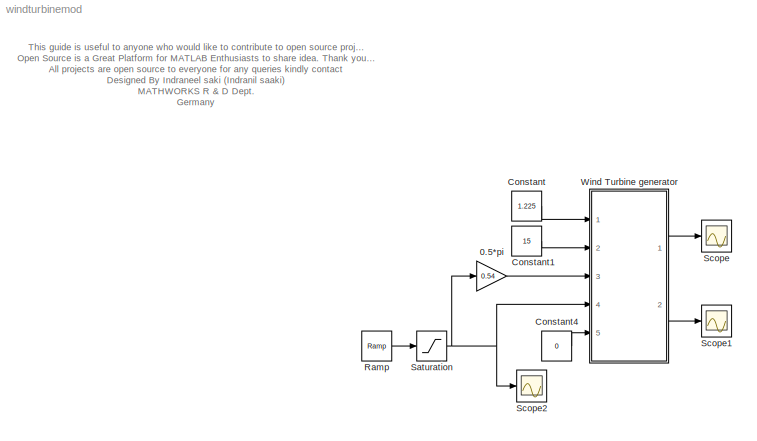
MODEL windturbinemod
KIND model
BLOCK [Gain] 0.5*pi
  Gain = 0.54
  OutDataTypeStr = Inherit: Inherit via internal rule
  ParamDataTypeStr = Inherit: Inherit via internal rule
  SID = 1
  SaturateOnIntegerOverflow = off
BLOCK [Constant] Constant
  SID = 2
  Value = 1.225
BLOCK [Constant] Constant1
  SID = 3
  Value = 15
BLOCK [Constant] Constant4
  SID = 4
  Value = 0
BLOCK [Reference] Ramp  REF=simulink/Sources/Ramp
  FunctionWithSeparateData = off
  Ports = [0, 1]
  RTWMemSecDataConstants = Inherit from model
  RTWMemSecDataInternal = Inherit from model
  RTWMemSecDataParameters = Inherit from model
  RTWMemSecFuncExecute = Inherit from model
  RTWMemSecFuncInitTerm = Inherit from model
  SID = 5
  ShowPortLabels = FromPortIcon
  SourceBlock = simulink/Sources/Ramp
  SourceProductBaseCode = SL
  SourceProductName = Simulink
  SourceType = Ramp
  SystemSampleTime = -1
  VectorParams1D = on
  X0 = 0
  slope = 1
  start = 0
BLOCK [Saturate] Saturation
  InputPortMap = u0
  LowerLimit = 3
  Ports = [1, 1]
  SID = 6
  UpperLimit = 100
BLOCK [Scope] Scope
  Floating = off
  NumInputPorts = 1
  Ports = [1]
  SID = 7
  ScopeSpecificationString = C++SS(StrPVP('Location','[6, 56, 1022, 740]'),StrPVP('Open','off'),MxPVP('AxesTitles',54,'struct(''axes1'',''%<SignalLabel>'')'),StrPVP('TimeRange','50'),StrPVP('YMin','5.19127e-026'),StrPVP('YMax','1.71991e+308'),StrPVP('DataFormat','StructureWithTime'),StrPVP('LimitDataPoints','off'),StrPVP('BlockParamSampleTime','0'),StrPVP('Decimation','1'),StrPVP('BlockParamSampleInput','off'))
BLOCK [Scope] Scope1
  Floating = off
  NumInputPorts = 1
  Ports = [1]
  SID = 8
  ScopeSpecificationString = C++SS(StrPVP('Location','[6, 56, 1022, 740]'),StrPVP('Open','off'),StrPVP('ZoomMode','xonly'),MxPVP('AxesTitles',54,'struct(''axes1'',''%<SignalLabel>'')'),StrPVP('SaveName','ScopeData1'),StrPVP('DataFormat','StructureWithTime'),StrPVP('LimitDataPoints','off'),StrPVP('BlockParamSampleTime','0'),StrPVP('Decimation','1'),StrPVP('BlockParamSampleInput','off'))
BLOCK [Scope] Scope2
  Floating = off
  NumInputPorts = 1
  Ports = [1]
  SID = 9
  ScopeSpecificationString = C++SS(StrPVP('Location','[188, 390, 512, 629]'),StrPVP('Open','off'),StrPVP('ZoomMode','yonly'),MxPVP('AxesTitles',54,'struct(''axes1'',''%<SignalLabel>'')'),StrPVP('SaveName','ScopeData4'),StrPVP('DataFormat','StructureWithTime'),StrPVP('BlockParamSampleTime','0'),StrPVP('LimitDataPoints','on'),StrPVP('Decimation','1'),StrPVP('BlockParamSampleInput','off'))
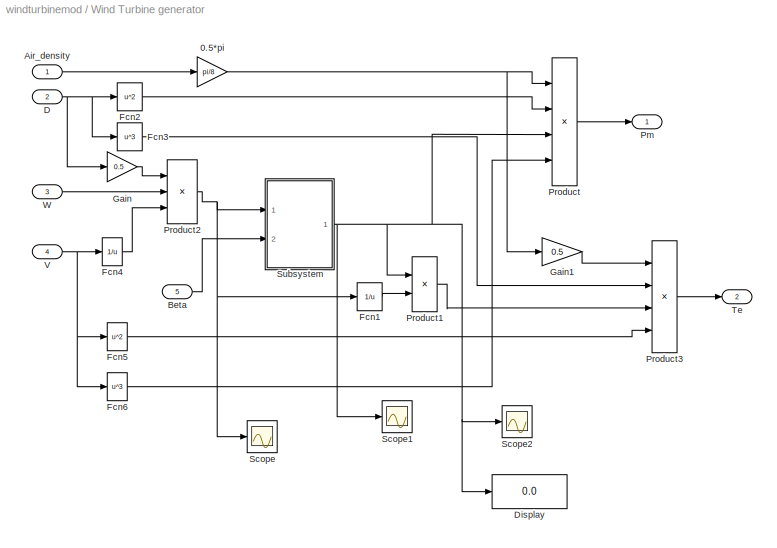
BLOCK [SubSystem] Wind Turbine generator
  Ports = [5, 2]
  RequestExecContextInheritance = off
  SID = 10
BLOCK [Gain] Wind Turbine generator/0.5*pi
  Gain = pi/8
  OutDataTypeStr = Inherit: Inherit via internal rule
  ParamDataTypeStr = Inherit: Inherit via internal rule
  SID = 16
  SaturateOnIntegerOverflow = off
BLOCK [Inport] Wind Turbine generator/Air_density
  IconDisplay = Port number
  SID = 11
BLOCK [Inport] Wind Turbine generator/Beta
  IconDisplay = Port number
  Port = 5
  SID = 15
BLOCK [Inport] Wind Turbine generator/D
  IconDisplay = Port number
  Port = 2
  SID = 12
BLOCK [Display] Wind Turbine generator/Display
  Decimation = 1
  Ports = [1]
  SID = 17
BLOCK [Fcn] Wind Turbine generator/Fcn1
  Expr = 1/u
  SID = 18
BLOCK [Fcn] Wind Turbine generator/Fcn2
  Expr = u^2
  SID = 19
BLOCK [Fcn] Wind Turbine generator/Fcn3
  Expr = u^3
  SID = 20
BLOCK [Fcn] Wind Turbine generator/Fcn4
  Expr = 1/u
  SID = 21
BLOCK [Fcn] Wind Turbine generator/Fcn5
  Expr = u^2
  SID = 22
BLOCK [Fcn] Wind Turbine generator/Fcn6
  Expr = u^3
  SID = 23
BLOCK [Gain] Wind Turbine generator/Gain
  Gain = 0.5
  OutDataTypeStr = Inherit: Inherit via internal rule
  ParamDataTypeStr = Inherit: Inherit via internal rule
  SID = 24
  SaturateOnIntegerOverflow = off
BLOCK [Gain] Wind Turbine generator/Gain1
  Gain = 0.5
  OutDataTypeStr = Inherit: Inherit via internal rule
  ParamDataTypeStr = Inherit: Inherit via internal rule
  SID = 25
  SaturateOnIntegerOverflow = off
BLOCK [Outport] Wind Turbine generator/Pm
  IconDisplay = Port number
  SID = 41
BLOCK [Product] Wind Turbine generator/Product
  InputSameDT = off
  Inputs = 4
  OutDataTypeStr = Inherit: Inherit via internal rule
  Ports = [4, 1]
  SID = 26
  SaturateOnIntegerOverflow = off
BLOCK [Product] Wind Turbine generator/Product1
  InputSameDT = off
  OutDataTypeStr = Inherit: Inherit via internal rule
  Ports = [2, 1]
  SID = 27
  SaturateOnIntegerOverflow = off
BLOCK [Product] Wind Turbine generator/Product2
  InputSameDT = off
  Inputs = 3
  OutDataTypeStr = Inherit: Inherit via internal rule
  Ports = [3, 1]
  SID = 28
  SaturateOnIntegerOverflow = off
BLOCK [Product] Wind Turbine generator/Product3
  InputSameDT = off
  Inputs = 4
  OutDataTypeStr = Inherit: Inherit via internal rule
  Ports = [4, 1]
  SID = 29
  SaturateOnIntegerOverflow = off
BLOCK [Scope] Wind Turbine generator/Scope
  Floating = off
  NumInputPorts = 1
  Ports = [1]
  SID = 30
  ScopeSpecificationString = C++SS(StrPVP('Location','[188, 390, 512, 629]'),StrPVP('Open','off'),StrPVP('ZoomMode','xonly'),MxPVP('AxesTitles',54,'struct(''axes1'',''%<SignalLabel>'')'),StrPVP('SaveName','ScopeData2'),StrPVP('DataFormat','StructureWithTime'),StrPVP('LimitDataPoints','off'),StrPVP('BlockParamSampleTime','0'),StrPVP('Decimation','1'),StrPVP('BlockParamSampleInput','off'))
BLOCK [Scope] Wind Turbine generator/Scope1
  Floating = off
  NumInputPorts = 1
  Ports = [1]
  SID = 31
  ScopeSpecificationString = C++SS(StrPVP('Location','[1, 45, 1017, 729]'),StrPVP('Open','off'),StrPVP('ZoomMode','yonly'),MxPVP('AxesTitles',54,'struct(''axes1'',''%<SignalLabel>'')'),StrPVP('SaveName','ScopeData3'),StrPVP('DataFormat','StructureWithTime'),StrPVP('LimitDataPoints','off'),StrPVP('BlockParamSampleTime','0'),StrPVP('Decimation','1'),StrPVP('BlockParamSampleInput','off'))
BLOCK [Scope] Wind Turbine generator/Scope2
  Floating = off
  NumInputPorts = 1
  Ports = [1]
  SID = 32
  ScopeSpecificationString = C++SS(StrPVP('Location','[188, 390, 512, 629]'),StrPVP('Open','off'),StrPVP('ZoomMode','yonly'),MxPVP('AxesTitles',54,'struct(''axes1'',''%<SignalLabel>'')'),StrPVP('SaveName','ScopeData5'),StrPVP('DataFormat','StructureWithTime'),StrPVP('LimitDataPoints','off'),StrPVP('BlockParamSampleTime','0'),StrPVP('Decimation','1'),StrPVP('BlockParamSampleInput','off'))
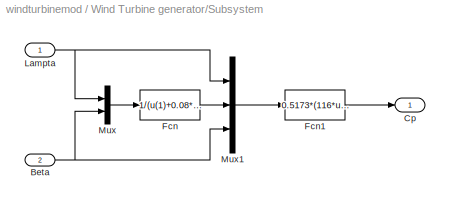
BLOCK [SubSystem] Wind Turbine generator/Subsystem
  Ports = [2, 1]
  RequestExecContextInheritance = off
  SID = 33
BLOCK [Inport] Wind Turbine generator/Subsystem/Beta
  IconDisplay = Port number
  Port = 2
  SID = 35
BLOCK [Outport] Wind Turbine generator/Subsystem/Cp
  IconDisplay = Port number
  SID = 40
BLOCK [Fcn] Wind Turbine generator/Subsystem/Fcn
  Expr = 1/(u(1)+0.08*u(2))-0.035/(u(2)^3+1)
  SID = 36
BLOCK [Fcn] Wind Turbine generator/Subsystem/Fcn1
  Expr = 0.5173*(116*u(2)-0.4*u(3)-5)*exp(-21*u(2))+0.0068*u(1)
  SID = 37
BLOCK [Inport] Wind Turbine generator/Subsystem/Lampta
  IconDisplay = Port number
  SID = 34
BLOCK [Mux] Wind Turbine generator/Subsystem/Mux
  DisplayOption = bar
  Inputs = 2
  Ports = [2, 1]
  SID = 38
BLOCK [Mux] Wind Turbine generator/Subsystem/Mux1
  DisplayOption = bar
  Inputs = 3
  Ports = [3, 1]
  SID = 39
BLOCK [Outport] Wind Turbine generator/Te
  IconDisplay = Port number
  Port = 2
  SID = 42
BLOCK [Inport] Wind Turbine generator/V
  IconDisplay = Port number
  Port = 4
  SID = 14
BLOCK [Inport] Wind Turbine generator/W
  IconDisplay = Port number
  Port = 3
  SID = 13
ANNOTATION (root): This guide is useful to anyone who would like to contribute to open source projects on MATLAB. \nOpen Source is a Great Platform for MATLAB Enthusiasts to share idea. Thank you for your willingness to contribute.\nAll projects are open source to everyone for any queries kindly contact \nDesigned By Indraneel saki (Indranil saaki)\nMATHWORKS R & D Dept. \nGermany
LINE 0.5*pi:1 -> Wind Turbine generator:3
LINE Constant1:1 -> Wind Turbine generator:2
LINE Constant4:1 -> Wind Turbine generator:5
LINE Constant:1 -> Wind Turbine generator:1
LINE Ramp:1 -> Saturation:1
NET Saturation:1 -> 0.5*pi:1, Scope2:1, Wind Turbine generator:4
NET Wind Turbine generator/0.5*pi:1 -> Wind Turbine generator/Gain1:1, Wind Turbine generator/Product:1
LINE Wind Turbine generator/Air_density:1 -> Wind Turbine generator/0.5*pi:1
LINE Wind Turbine generator/Beta:1 -> Wind Turbine generator/Subsystem:2
NET Wind Turbine generator/D:1 -> Wind Turbine generator/Fcn2:1, Wind Turbine generator/Fcn3:1, Wind Turbine generator/Gain:1
LINE Wind Turbine generator/Fcn1:1 -> Wind Turbine generator/Product1:2
LINE Wind Turbine generator/Fcn2:1 -> Wind Turbine generator/Product:2
LINE Wind Turbine generator/Fcn3:1 -> Wind Turbine generator/Product3:2
LINE Wind Turbine generator/Fcn4:1 -> Wind Turbine generator/Product2:3
LINE Wind Turbine generator/Fcn5:1 -> Wind Turbine generator/Product3:4
LINE Wind Turbine generator/Fcn6:1 -> Wind Turbine generator/Product:4
LINE Wind Turbine generator/Gain1:1 -> Wind Turbine generator/Product3:1
LINE Wind Turbine generator/Gain:1 -> Wind Turbine generator/Product2:1
LINE Wind Turbine generator/Product1:1 -> Wind Turbine generator/Product3:3
NET Wind Turbine generator/Product2:1 -> Wind Turbine generator/Fcn1:1, Wind Turbine generator/Scope:1, Wind Turbine generator/Subsystem:1
LINE Wind Turbine generator/Product3:1 -> Wind Turbine generator/Te:1
LINE Wind Turbine generator/Product:1 -> Wind Turbine generator/Pm:1
NET Wind Turbine generator/Subsystem/Beta:1 -> Wind Turbine generator/Subsystem/Mux1:3, Wind Turbine generator/Subsystem/Mux:2
LINE Wind Turbine generator/Subsystem/Fcn1:1 -> Wind Turbine generator/Subsystem/Cp:1
LINE Wind Turbine generator/Subsystem/Fcn:1 -> Wind Turbine generator/Subsystem/Mux1:2
NET Wind Turbine generator/Subsystem/Lampta:1 -> Wind Turbine generator/Subsystem/Mux1:1, Wind Turbine generator/Subsystem/Mux:1
LINE Wind Turbine generator/Subsystem/Mux1:1 -> Wind Turbine generator/Subsystem/Fcn1:1
LINE Wind Turbine generator/Subsystem/Mux:1 -> Wind Turbine generator/Subsystem/Fcn:1
NET Wind Turbine generator/Subsystem:1 -> Wind Turbine generator/Display:1, Wind Turbine generator/Product1:1, Wind Turbine generator/Product:3, Wind Turbine generator/Scope1:1, Wind Turbine generator/Scope2:1
NET Wind Turbine generator/V:1 -> Wind Turbine generator/Fcn4:1, Wind Turbine generator/Fcn5:1, Wind Turbine generator/Fcn6:1
LINE Wind Turbine generator/W:1 -> Wind Turbine generator/Product2:2
LINE Wind Turbine generator:1 -> Scope:1
LINE Wind Turbine generator:2 -> Scope1:1
note: NET lines group one-source signal fan-out (src -> all destinations, sorted); 1:1 wires keep LINE
